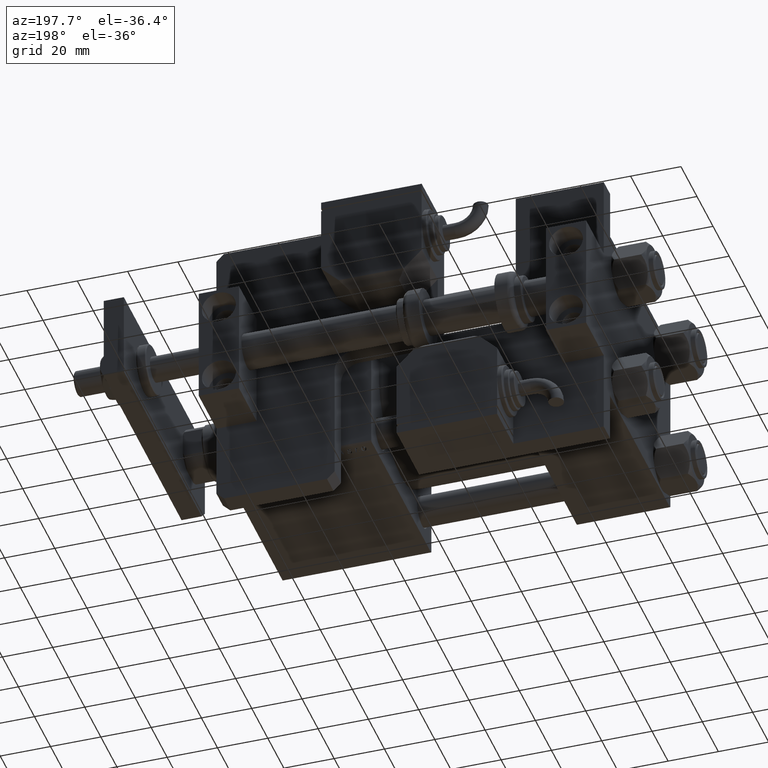
[diagram: clean part render]
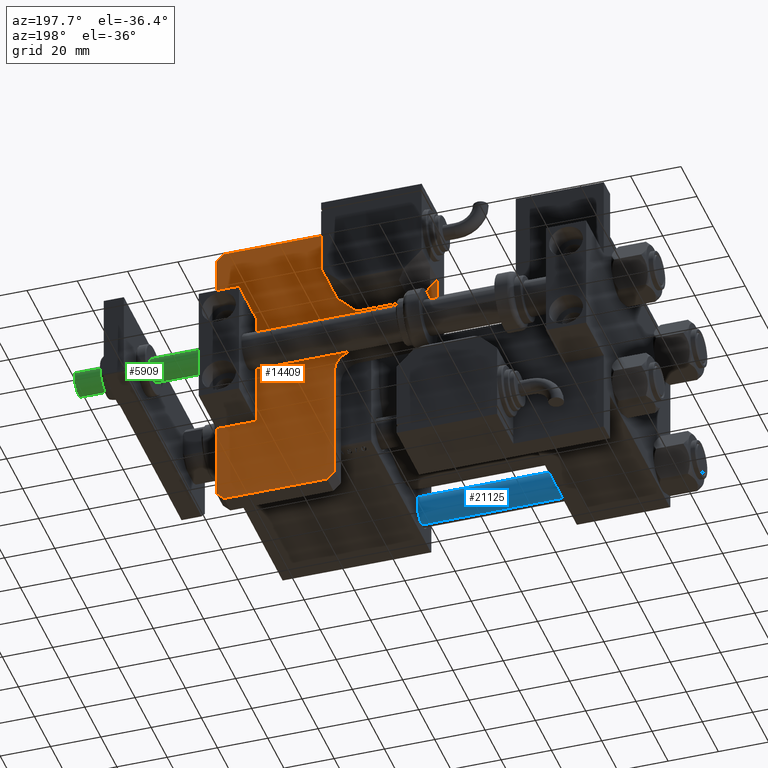
[diagram: same view with three faces highlighted in distinct colors, each labeled with its STEP entity id]
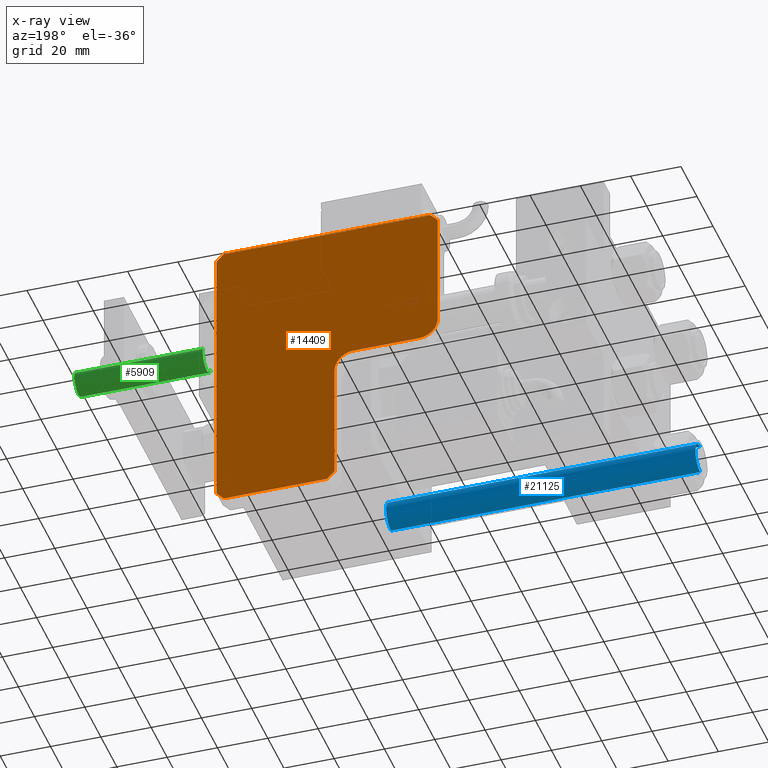
[diagram: x-ray of the same camera — body ghosted, the three highlighted faces saturated]
A machine part, auxiliary view with three faces highlighted in distinct colors.
The next image is the same camera in x-ray (body ghosted, the three faces saturated) — at least one of them is partly hidden behind the body in this view.
Their STEP definitions:

[orange] entity #14409 — the highlighted planar face has unit normal (0, 1, 0).
#268 = CARTESIAN_POINT ( 'NONE',  ( 114.9999999999999858, 2.999999999999975131, 8.000000000000000000 ) ) ;
#1693 = DIRECTION ( 'NONE',  ( -0.000000000000000000, 0.000000000000000000, -1.000000000000000000 ) ) ;
#2845 = EDGE_CURVE ( 'NONE', #48768, #10863, #44481, .T. ) ;
#3538 = CARTESIAN_POINT ( 'NONE',  ( 3.000000000000002665, 88.00000000000000000, 8.000000000000000000 ) ) ;
#4078 = EDGE_CURVE ( 'NONE', #31422, #7655, #50891, .T. ) ;
#4825 = DIRECTION ( 'NONE',  ( 1.000000000000000000, 0.000000000000000000, 0.000000000000000000 ) ) ;
#5187 = DIRECTION ( 'NONE',  ( 0.000000000000000000, -1.000000000000000000, 0.000000000000000000 ) ) ;
#5432 = ORIENTED_EDGE ( 'NONE', *, *, #15144, .T. ) ;
#5785 = VECTOR ( 'NONE', #5187, 1000.000000000000000 ) ;
#6707 = ORIENTED_EDGE ( 'NONE', *, *, #46874, .T. ) ;
#6750 = EDGE_CURVE ( 'NONE', #20883, #35166, #8179, .T. ) ;
#7561 = EDGE_CURVE ( 'NONE', #35103, #31422, #9703, .T. ) ;
#7655 = VERTEX_POINT ( 'NONE', #268 ) ;
#8179 = LINE ( 'NONE', #52273, #33031 ) ;
#8906 = ORIENTED_EDGE ( 'NONE', *, *, #25840, .T. ) ;
#9385 = CARTESIAN_POINT ( 'NONE',  ( 56.99999999999999289, 54.49999999999998579, 8.000000000000000000 ) ) ;
#9703 = LINE ( 'NONE', #17648, #44830 ) ;
#10226 = VERTEX_POINT ( 'NONE', #52837 ) ;
#10863 = VERTEX_POINT ( 'NONE', #20218 ) ;
#10991 = CARTESIAN_POINT ( 'NONE',  ( 0.000000000000000000, 0.000000000000000000, 8.000000000000000000 ) ) ;
#11462 = CARTESIAN_POINT ( 'NONE',  ( 114.9999999999999858, 43.99999999999998579, 8.000000000000000000 ) ) ;
#11967 = CIRCLE ( 'NONE', #51510, 7.500000000000000000 ) ;
#12000 = ORIENTED_EDGE ( 'NONE', *, *, #43136, .T. ) ;
#12159 = DIRECTION ( 'NONE',  ( 0.7071067811865507924, 0.7071067811865441310, -0.000000000000000000 ) ) ;
#12706 = CARTESIAN_POINT ( 'NONE',  ( -42.50000000000000711, 42.50000000000040501, 8.000000000000000000 ) ) ;
#12945 = ORIENTED_EDGE ( 'NONE', *, *, #14226, .T. ) ;
#13685 = CARTESIAN_POINT ( 'NONE',  ( 111.9999999999999858, 0.000000000000000000, 8.000000000000000000 ) ) ;
#14063 = CARTESIAN_POINT ( 'NONE',  ( 114.9999999999999858, 46.99999999999998579, 8.000000000000000000 ) ) ;
#14226 = EDGE_CURVE ( 'NONE', #10226, #32061, #11967, .T. ) ;
#14358 = LINE ( 'NONE', #36115, #30256 ) ;
#14409 = ADVANCED_FACE ( 'NONE', ( #14419 ), #40422, .T. ) ;
#14419 = FACE_OUTER_BOUND ( 'NONE', #30254, .T. ) ;
#15144 = EDGE_CURVE ( 'NONE', #7655, #20883, #32362, .T. ) ;
#16617 = VERTEX_POINT ( 'NONE', #32384 ) ;
#16649 = VECTOR ( 'NONE', #35280, 1000.000000000000000 ) ;
#16838 = VERTEX_POINT ( 'NONE', #3538 ) ;
#17369 = LINE ( 'NONE', #43089, #55793 ) ;
#17506 = DIRECTION ( 'NONE',  ( -0.7071067811865441310, 0.7071067811865507924, -0.000000000000000000 ) ) ;
#17648 = CARTESIAN_POINT ( 'NONE',  ( 0.000000000000000000, 0.000000000000000000, 8.000000000000000000 ) ) ;
#19100 = VERTEX_POINT ( 'NONE', #9385 ) ;
#19625 = AXIS2_PLACEMENT_3D ( 'NONE', #10991, #48631, #28257 ) ;
#19750 = CARTESIAN_POINT ( 'NONE',  ( 64.50000000000000000, 54.49999999999998579, 8.000000000000000000 ) ) ;
#20218 = CARTESIAN_POINT ( 'NONE',  ( 0.000000000000000000, 3.000000000000002665, 8.000000000000000000 ) ) ;
#20640 = ORIENTED_EDGE ( 'NONE', *, *, #4078, .T. ) ;
#20743 = DIRECTION ( 'NONE',  ( 0.000000000000000000, -0.000000000000000000, 1.000000000000000000 ) ) ;
#20883 = VERTEX_POINT ( 'NONE', #11462 ) ;
#21690 = CARTESIAN_POINT ( 'NONE',  ( 56.99999999999999289, 46.99999999999998579, 8.000000000000000000 ) ) ;
#22140 = ORIENTED_EDGE ( 'NONE', *, *, #52355, .T. ) ;
#22252 = CARTESIAN_POINT ( 'NONE',  ( 49.49999999999999289, 88.00000000000000000, 8.000000000000000000 ) ) ;
#23867 = VECTOR ( 'NONE', #12159, 1000.000000000000114 ) ;
#24037 = CARTESIAN_POINT ( 'NONE',  ( 55.99999999999947420, -55.99999999999999289, 8.000000000000000000 ) ) ;
#25840 = EDGE_CURVE ( 'NONE', #19100, #10226, #42342, .T. ) ;
#26960 = DIRECTION ( 'NONE',  ( 1.000000000000000000, 0.000000000000000000, 0.000000000000000000 ) ) ;
#28154 = EDGE_CURVE ( 'NONE', #16838, #48768, #42960, .T. ) ;
#28257 = DIRECTION ( 'NONE',  ( 1.000000000000000000, 0.000000000000000000, -0.000000000000000000 ) ) ;
#30254 = EDGE_LOOP ( 'NONE', ( #22140, #41533, #36964, #6707, #43831, #20640, #5432, #35782, #45044, #12000, #8906, #12945 ) ) ;
#30256 = VECTOR ( 'NONE', #52268, 1000.000000000000114 ) ;
#31422 = VERTEX_POINT ( 'NONE', #13685 ) ;
#32061 = VERTEX_POINT ( 'NONE', #22252 ) ;
#32362 = LINE ( 'NONE', #36881, #55823 ) ;
#32384 = CARTESIAN_POINT ( 'NONE',  ( 64.50000000000000000, 46.99999999999998579, 8.000000000000000000 ) ) ;
#32470 = CARTESIAN_POINT ( 'NONE',  ( 112.0000000000000142, 46.99999999999998579, 8.000000000000000000 ) ) ;
#32587 = VECTOR ( 'NONE', #34756, 1000.000000000000114 ) ;
#32750 = DIRECTION ( 'NONE',  ( 1.000000000000000000, 0.000000000000000000, 0.000000000000000000 ) ) ;
#33031 = VECTOR ( 'NONE', #17506, 1000.000000000000114 ) ;
#33930 = CARTESIAN_POINT ( 'NONE',  ( 2.999999999999975131, 0.000000000000000000, 8.000000000000000000 ) ) ;
#34019 = CARTESIAN_POINT ( 'NONE',  ( 49.49999999999999289, 80.49999999999998579, 8.000000000000000000 ) ) ;
#34685 = DIRECTION ( 'NONE',  ( 0.000000000000000000, 1.000000000000000000, 0.000000000000000000 ) ) ;
#34756 = DIRECTION ( 'NONE',  ( -0.7071067811865507924, -0.7071067811865441310, -0.000000000000000000 ) ) ;
#35103 = VERTEX_POINT ( 'NONE', #33930 ) ;
#35166 = VERTEX_POINT ( 'NONE', #32470 ) ;
#35280 = DIRECTION ( 'NONE',  ( -1.000000000000000000, 0.000000000000000000, 0.000000000000000000 ) ) ;
#35782 = ORIENTED_EDGE ( 'NONE', *, *, #6750, .T. ) ;
#36115 = CARTESIAN_POINT ( 'NONE',  ( 1.500000000000001332, 1.499999999999987566, 8.000000000000000000 ) ) ;
#36575 = CIRCLE ( 'NONE', #46519, 7.500000000000007105 ) ;
#36881 = CARTESIAN_POINT ( 'NONE',  ( 114.9999999999999858, 0.000000000000000000, 8.000000000000000000 ) ) ;
#36964 = ORIENTED_EDGE ( 'NONE', *, *, #2845, .T. ) ;
#40422 = PLANE ( 'NONE',  #19625 ) ;
#41533 = ORIENTED_EDGE ( 'NONE', *, *, #28154, .T. ) ;
#42342 = LINE ( 'NONE', #21690, #46189 ) ;
#42960 = LINE ( 'NONE', #12706, #32587 ) ;
#43089 = CARTESIAN_POINT ( 'NONE',  ( 56.99999999999999289, 88.00000000000000000, 8.000000000000000000 ) ) ;
#43136 = EDGE_CURVE ( 'NONE', #16617, #19100, #36575, .T. ) ;
#43831 = ORIENTED_EDGE ( 'NONE', *, *, #7561, .T. ) ;
#44481 = LINE ( 'NONE', #44762, #5785 ) ;
#44762 = CARTESIAN_POINT ( 'NONE',  ( 0.000000000000000000, 88.00000000000000000, 8.000000000000000000 ) ) ;
#44830 = VECTOR ( 'NONE', #26960, 1000.000000000000000 ) ;
#45044 = ORIENTED_EDGE ( 'NONE', *, *, #46200, .T. ) ;
#45219 = CARTESIAN_POINT ( 'NONE',  ( 0.000000000000000000, 85.00000000000001421, 8.000000000000000000 ) ) ;
#46189 = VECTOR ( 'NONE', #34685, 1000.000000000000000 ) ;
#46200 = EDGE_CURVE ( 'NONE', #35166, #16617, #48011, .T. ) ;
#46519 = AXIS2_PLACEMENT_3D ( 'NONE', #19750, #1693, #32750 ) ;
#46874 = EDGE_CURVE ( 'NONE', #10863, #35103, #14358, .T. ) ;
#48011 = LINE ( 'NONE', #14063, #16649 ) ;
#48631 = DIRECTION ( 'NONE',  ( 0.000000000000000000, -0.000000000000000000, 1.000000000000000000 ) ) ;
#48768 = VERTEX_POINT ( 'NONE', #45219 ) ;
#49595 = DIRECTION ( 'NONE',  ( 0.000000000000000000, 1.000000000000000000, 0.000000000000000000 ) ) ;
#50891 = LINE ( 'NONE', #24037, #23867 ) ;
#51510 = AXIS2_PLACEMENT_3D ( 'NONE', #34019, #20743, #4825 ) ;
#51850 = DIRECTION ( 'NONE',  ( -1.000000000000000000, 0.000000000000000000, 0.000000000000000000 ) ) ;
#52268 = DIRECTION ( 'NONE',  ( 0.7071067811865441310, -0.7071067811865507924, -0.000000000000000000 ) ) ;
#52273 = CARTESIAN_POINT ( 'NONE',  ( 79.50000000000051159, 79.49999999999977263, 8.000000000000000000 ) ) ;
#52355 = EDGE_CURVE ( 'NONE', #32061, #16838, #17369, .T. ) ;
#52837 = CARTESIAN_POINT ( 'NONE',  ( 56.99999999999999289, 80.49999999999997158, 8.000000000000000000 ) ) ;
#55793 = VECTOR ( 'NONE', #51850, 1000.000000000000000 ) ;
#55823 = VECTOR ( 'NONE', #49595, 1000.000000000000000 ) ;

[blue] entity #21125 — the highlighted cylindrical surface (edge-blend (fillet) strip) has radius 6 mm, axis along (-1, 0, -0).
#974 = CARTESIAN_POINT ( 'NONE',  ( 0.000000000000000000, 0.000000000000000000, 0.4999999999999865663 ) ) ;
#1239 = VERTEX_POINT ( 'NONE', #14828 ) ;
#1954 = CIRCLE ( 'NONE', #19090, 6.000000000000000888 ) ;
#3582 = CARTESIAN_POINT ( 'NONE',  ( -6.000000000000000888, 0.000000000000000000, 124.0000000000000000 ) ) ;
#4139 = DIRECTION ( 'NONE',  ( -0.000000000000000000, -0.000000000000000000, -1.000000000000000000 ) ) ;
#4228 = ORIENTED_EDGE ( 'NONE', *, *, #8225, .T. ) ;
#4983 = AXIS2_PLACEMENT_3D ( 'NONE', #50439, #7463, #55542 ) ;
#6023 = VECTOR ( 'NONE', #4139, 1000.000000000000000 ) ;
#7463 = DIRECTION ( 'NONE',  ( 0.000000000000000000, 0.000000000000000000, -1.000000000000000000 ) ) ;
#8225 = EDGE_CURVE ( 'NONE', #23948, #12946, #51069, .T. ) ;
#9056 = ORIENTED_EDGE ( 'NONE', *, *, #47295, .F. ) ;
#12946 = VERTEX_POINT ( 'NONE', #39384 ) ;
#14828 = CARTESIAN_POINT ( 'NONE',  ( 6.000000000000000888, 7.347880794884120722E-16, 0.4999999999999865663 ) ) ;
#17620 = CARTESIAN_POINT ( 'NONE',  ( 6.000000000000000888, 7.347880794884120722E-16, 123.5000000000000426 ) ) ;
#17683 = CARTESIAN_POINT ( 'NONE',  ( 0.000000000000000000, 0.000000000000000000, 124.0000000000000000 ) ) ;
#19090 = AXIS2_PLACEMENT_3D ( 'NONE', #974, #52137, #30663 ) ;
#20799 = DIRECTION ( 'NONE',  ( -0.000000000000000000, -0.000000000000000000, -1.000000000000000000 ) ) ;
#21125 = ADVANCED_FACE ( 'NONE', ( #25323 ), #55300, .T. ) ;
#22125 = CIRCLE ( 'NONE', #4983, 6.000000000000000888 ) ;
#23317 = CARTESIAN_POINT ( 'NONE',  ( 6.000000000000000888, 7.347880794884120722E-16, 124.0000000000000000 ) ) ;
#23948 = VERTEX_POINT ( 'NONE', #49540 ) ;
#25323 = FACE_OUTER_BOUND ( 'NONE', #51235, .T. ) ;
#28531 = EDGE_CURVE ( 'NONE', #12946, #1239, #1954, .T. ) ;
#30663 = DIRECTION ( 'NONE',  ( 1.000000000000000000, 0.000000000000000000, 0.000000000000000000 ) ) ;
#32054 = VECTOR ( 'NONE', #36322, 1000.000000000000000 ) ;
#32911 = LINE ( 'NONE', #23317, #32054 ) ;
#36322 = DIRECTION ( 'NONE',  ( -0.000000000000000000, -0.000000000000000000, -1.000000000000000000 ) ) ;
#38053 = DIRECTION ( 'NONE',  ( -1.000000000000000000, 0.000000000000000000, 0.000000000000000000 ) ) ;
#39384 = CARTESIAN_POINT ( 'NONE',  ( -6.000000000000000888, 0.000000000000000000, 0.4999999999999865663 ) ) ;
#40253 = ORIENTED_EDGE ( 'NONE', *, *, #28531, .T. ) ;
#46915 = ORIENTED_EDGE ( 'NONE', *, *, #47350, .T. ) ;
#47295 = EDGE_CURVE ( 'NONE', #54015, #1239, #32911, .T. ) ;
#47350 = EDGE_CURVE ( 'NONE', #54015, #23948, #22125, .T. ) ;
#49540 = CARTESIAN_POINT ( 'NONE',  ( -6.000000000000000888, 0.000000000000000000, 123.5000000000000426 ) ) ;
#49612 = AXIS2_PLACEMENT_3D ( 'NONE', #17683, #20799, #38053 ) ;
#50439 = CARTESIAN_POINT ( 'NONE',  ( 0.000000000000000000, 0.000000000000000000, 123.5000000000000426 ) ) ;
#51069 = LINE ( 'NONE', #3582, #6023 ) ;
#51235 = EDGE_LOOP ( 'NONE', ( #9056, #46915, #4228, #40253 ) ) ;
#52137 = DIRECTION ( 'NONE',  ( -0.000000000000000000, -0.000000000000000000, 1.000000000000000000 ) ) ;
#54015 = VERTEX_POINT ( 'NONE', #17620 ) ;
#55300 = CYLINDRICAL_SURFACE ( 'NONE', #49612, 6.000000000000000888 ) ;
#55542 = DIRECTION ( 'NONE',  ( 1.000000000000000000, 0.000000000000000000, 0.000000000000000000 ) ) ;

[green] entity #5909 — the highlighted cylindrical surface (edge-blend (fillet) strip) has radius 5 mm, axis along (-1, -0, -0).
#640 = EDGE_CURVE ( 'NONE', #19010, #29011, #50964, .T. ) ;
#3488 = EDGE_CURVE ( 'NONE', #19010, #41635, #48792, .T. ) ;
#5909 = ADVANCED_FACE ( 'NONE', ( #32760 ), #45221, .T. ) ;
#6085 = CARTESIAN_POINT ( 'NONE',  ( 5.000000000000000000, 0.000000000000000000, -51.50000000000000000 ) ) ;
#10344 = VECTOR ( 'NONE', #10612, 1000.000000000000000 ) ;
#10612 = DIRECTION ( 'NONE',  ( -0.000000000000000000, -0.000000000000000000, 1.000000000000000000 ) ) ;
#11091 = AXIS2_PLACEMENT_3D ( 'NONE', #21140, #24534, #20290 ) ;
#12822 = DIRECTION ( 'NONE',  ( -0.000000000000000000, -0.000000000000000000, 1.000000000000000000 ) ) ;
#15790 = DIRECTION ( 'NONE',  ( -0.000000000000000000, -0.000000000000000000, 1.000000000000000000 ) ) ;
#16484 = CARTESIAN_POINT ( 'NONE',  ( 5.000000000000000000, 0.000000000000000000, -51.00000000000003553 ) ) ;
#17464 = VERTEX_POINT ( 'NONE', #52766 ) ;
#19010 = VERTEX_POINT ( 'NONE', #16484 ) ;
#20290 = DIRECTION ( 'NONE',  ( -1.000000000000000000, 0.000000000000000000, 0.000000000000000000 ) ) ;
#21140 = CARTESIAN_POINT ( 'NONE',  ( 0.000000000000000000, 0.000000000000000000, 0.000000000000000000 ) ) ;
#24534 = DIRECTION ( 'NONE',  ( 0.000000000000000000, 0.000000000000000000, -1.000000000000000000 ) ) ;
#28511 = VECTOR ( 'NONE', #12822, 1000.000000000000000 ) ;
#29011 = VERTEX_POINT ( 'NONE', #54564 ) ;
#29385 = AXIS2_PLACEMENT_3D ( 'NONE', #40967, #15790, #37292 ) ;
#29825 = CARTESIAN_POINT ( 'NONE',  ( 5.000000000000000000, 0.000000000000000000, 0.000000000000000000 ) ) ;
#31826 = EDGE_CURVE ( 'NONE', #17464, #41635, #55362, .T. ) ;
#32760 = FACE_OUTER_BOUND ( 'NONE', #33521, .T. ) ;
#33120 = DIRECTION ( 'NONE',  ( 0.000000000000000000, 0.000000000000000000, 1.000000000000000000 ) ) ;
#33521 = EDGE_LOOP ( 'NONE', ( #35971, #54283, #39373, #54883 ) ) ;
#33812 = AXIS2_PLACEMENT_3D ( 'NONE', #41320, #33120, #45290 ) ;
#35971 = ORIENTED_EDGE ( 'NONE', *, *, #640, .T. ) ;
#37292 = DIRECTION ( 'NONE',  ( 1.000000000000000000, 0.000000000000000000, 0.000000000000000000 ) ) ;
#39373 = ORIENTED_EDGE ( 'NONE', *, *, #31826, .T. ) ;
#40967 = CARTESIAN_POINT ( 'NONE',  ( 0.000000000000000000, 0.000000000000000000, -51.50000000000000000 ) ) ;
#41320 = CARTESIAN_POINT ( 'NONE',  ( 0.000000000000000000, 0.000000000000000000, -51.00000000000003553 ) ) ;
#41635 = VERTEX_POINT ( 'NONE', #29825 ) ;
#44398 = CARTESIAN_POINT ( 'NONE',  ( -5.000000000000000000, 6.123233995736766282E-16, -51.50000000000000000 ) ) ;
#44527 = EDGE_CURVE ( 'NONE', #29011, #17464, #47600, .T. ) ;
#45221 = CYLINDRICAL_SURFACE ( 'NONE', #29385, 5.000000000000000000 ) ;
#45290 = DIRECTION ( 'NONE',  ( -1.000000000000000000, 0.000000000000000000, 0.000000000000000000 ) ) ;
#47600 = LINE ( 'NONE', #44398, #28511 ) ;
#48792 = LINE ( 'NONE', #6085, #10344 ) ;
#50964 = CIRCLE ( 'NONE', #33812, 5.000000000000000000 ) ;
#52766 = CARTESIAN_POINT ( 'NONE',  ( -5.000000000000000000, 6.123233995736766282E-16, 0.000000000000000000 ) ) ;
#54283 = ORIENTED_EDGE ( 'NONE', *, *, #44527, .T. ) ;
#54564 = CARTESIAN_POINT ( 'NONE',  ( -5.000000000000000000, 6.123233995736766282E-16, -51.00000000000003553 ) ) ;
#54883 = ORIENTED_EDGE ( 'NONE', *, *, #3488, .F. ) ;
#55362 = CIRCLE ( 'NONE', #11091, 5.000000000000000000 ) ;